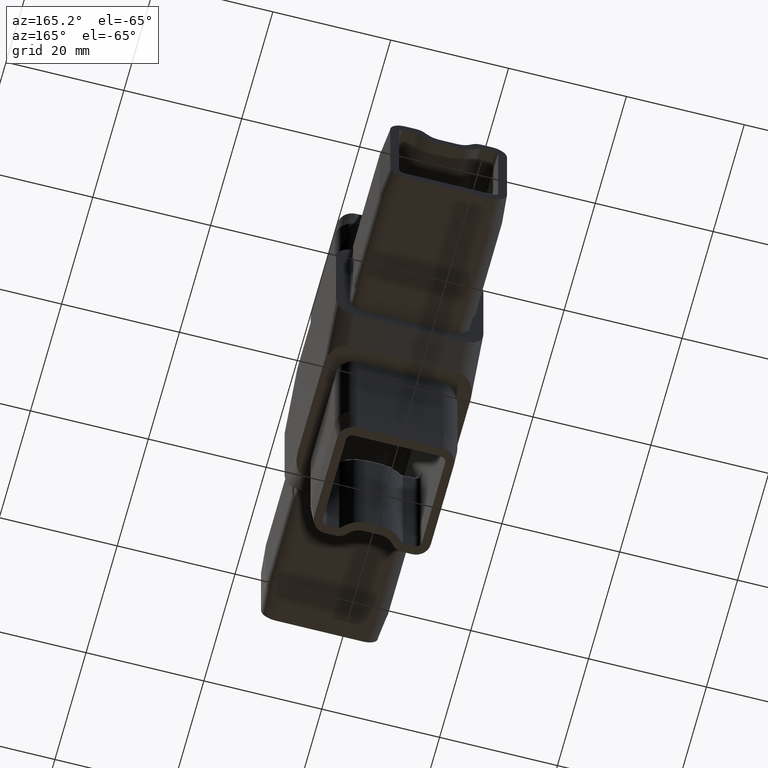
[diagram: clean part render]
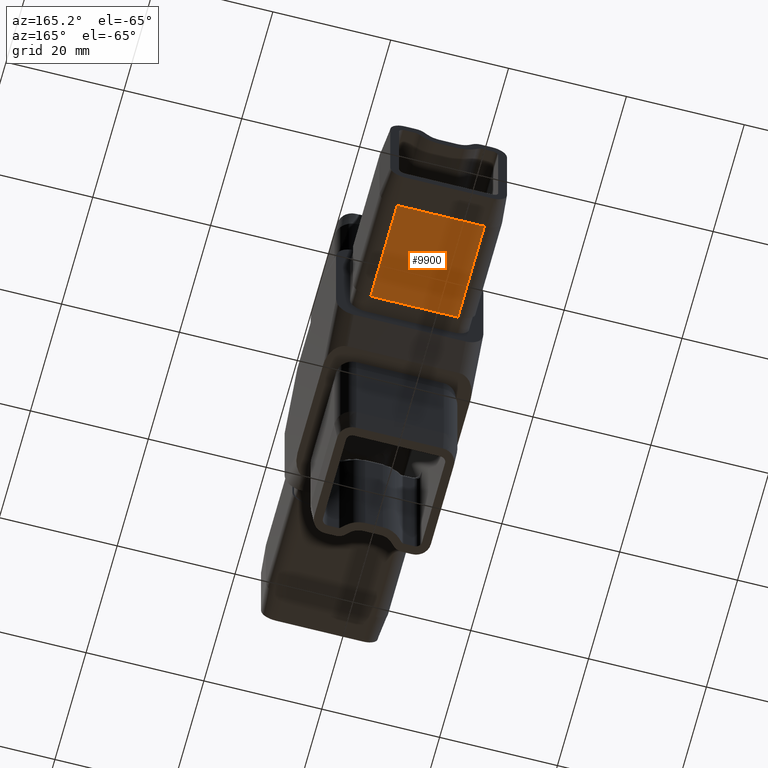
[diagram: same view with one face highlighted and labeled with its STEP entity id]
A machine part, auxiliary view. The second image highlights one B-rep face of the part: STEP entity #9900.
In plain terms, the highlighted planar face has unit normal (-0, 0, 1).
Its self-contained STEP definition (entity closure, byte-faithful):
#659 = ORIENTED_EDGE ( 'NONE', *, *, #20474, .F. ) ;
#750 = VERTEX_POINT ( 'NONE', #18038 ) ;
#1297 = CARTESIAN_POINT ( 'NONE',  ( 7.399999999999996800, 19.50000000000000400, -10.39999999999998300 ) ) ;
#1701 = CARTESIAN_POINT ( 'NONE',  ( -7.400000000000003900, 19.50000000000000400, -10.39999999999998300 ) ) ;
#1751 = CARTESIAN_POINT ( 'NONE',  ( -7.400000000000003900, 19.50000000000000400, -10.39999999999998300 ) ) ;
#1816 = VERTEX_POINT ( 'NONE', #1701 ) ;
#1876 = ORIENTED_EDGE ( 'NONE', *, *, #25386, .F. ) ;
#2276 = VECTOR ( 'NONE', #20875, 1000.000000000000000 ) ;
#4137 = VECTOR ( 'NONE', #19543, 1000.000000000000000 ) ;
#4501 = ORIENTED_EDGE ( 'NONE', *, *, #21049, .F. ) ;
#5061 = VECTOR ( 'NONE', #25715, 1000.000000000000000 ) ;
#5259 = CARTESIAN_POINT ( 'NONE',  ( -7.400000000000006600, 36.50000000000001400, -10.39999999999997500 ) ) ;
#7750 = DIRECTION ( 'NONE',  ( -1.000000000000000000, -0.0000000000000000000, -0.0000000000000000000 ) ) ;
#7790 = CARTESIAN_POINT ( 'NONE',  ( 7.399999999999996800, 36.50000000000001400, -10.39999999999998100 ) ) ;
#9900 = ADVANCED_FACE ( 'NONE', ( #25371 ), #13213, .F. ) ;
#10340 = CARTESIAN_POINT ( 'NONE',  ( -7.400000000000003000, 41.50000000000000700, -10.39999999999998300 ) ) ;
#10351 = CARTESIAN_POINT ( 'NONE',  ( -8.673617379884035500E-016, 19.50000000000000400, -10.39999999999998100 ) ) ;
#13213 = PLANE ( 'NONE',  #14982 ) ;
#13590 = LINE ( 'NONE', #5259, #4137 ) ;
#13946 = VERTEX_POINT ( 'NONE', #7790 ) ;
#14982 = AXIS2_PLACEMENT_3D ( 'NONE', #25059, #27451, #30060 ) ;
#15814 = LINE ( 'NONE', #26878, #26047 ) ;
#15988 = EDGE_CURVE ( 'NONE', #13946, #24687, #22307, .T. ) ;
#16152 = EDGE_LOOP ( 'NONE', ( #659, #18718, #4501, #23503, #19439, #1876 ) ) ;
#18038 = CARTESIAN_POINT ( 'NONE',  ( -7.400000000000006600, 36.50000000000001400, -10.39999999999997500 ) ) ;
#18635 = VERTEX_POINT ( 'NONE', #10351 ) ;
#18718 = ORIENTED_EDGE ( 'NONE', *, *, #20519, .T. ) ;
#19439 = ORIENTED_EDGE ( 'NONE', *, *, #25887, .T. ) ;
#19543 = DIRECTION ( 'NONE',  ( 1.000000000000000000, 0.0000000000000000000, 2.344220913482171200E-016 ) ) ;
#20474 = EDGE_CURVE ( 'NONE', #750, #1816, #28323, .T. ) ;
#20519 = EDGE_CURVE ( 'NONE', #750, #25115, #13590, .T. ) ;
#20618 = DIRECTION ( 'NONE',  ( -1.000000000000000000, -0.0000000000000000000, -0.0000000000000000000 ) ) ;
#20875 = DIRECTION ( 'NONE',  ( -0.0000000000000000000, -1.000000000000000000, -0.0000000000000000000 ) ) ;
#21049 = EDGE_CURVE ( 'NONE', #13946, #25115, #15814, .T. ) ;
#22307 = LINE ( 'NONE', #28309, #2276 ) ;
#22331 = VECTOR ( 'NONE', #22395, 1000.000000000000000 ) ;
#22395 = DIRECTION ( 'NONE',  ( -0.0000000000000000000, -1.000000000000000000, -0.0000000000000000000 ) ) ;
#23503 = ORIENTED_EDGE ( 'NONE', *, *, #15988, .T. ) ;
#24687 = VERTEX_POINT ( 'NONE', #29454 ) ;
#25059 = CARTESIAN_POINT ( 'NONE',  ( -7.400000000000003000, 41.50000000000000700, -10.39999999999998300 ) ) ;
#25115 = VERTEX_POINT ( 'NONE', #27084 ) ;
#25371 = FACE_OUTER_BOUND ( 'NONE', #16152, .T. ) ;
#25386 = EDGE_CURVE ( 'NONE', #1816, #18635, #29600, .T. ) ;
#25715 = DIRECTION ( 'NONE',  ( 1.000000000000000000, 0.0000000000000000000, 2.344220913482171200E-016 ) ) ;
#25887 = EDGE_CURVE ( 'NONE', #24687, #18635, #27175, .T. ) ;
#26047 = VECTOR ( 'NONE', #7750, 1000.000000000000000 ) ;
#26878 = CARTESIAN_POINT ( 'NONE',  ( 7.399999999999996800, 36.50000000000001400, -10.39999999999998100 ) ) ;
#27084 = CARTESIAN_POINT ( 'NONE',  ( -3.469446951953614200E-015, 36.50000000000001400, -10.39999999999997400 ) ) ;
#27175 = LINE ( 'NONE', #1297, #29776 ) ;
#27451 = DIRECTION ( 'NONE',  ( -1.172110456741085800E-016, 0.0000000000000000000, 1.000000000000000000 ) ) ;
#28309 = CARTESIAN_POINT ( 'NONE',  ( 7.399999999999996800, 41.50000000000000700, -10.39999999999998100 ) ) ;
#28323 = LINE ( 'NONE', #10340, #22331 ) ;
#29454 = CARTESIAN_POINT ( 'NONE',  ( 7.399999999999996800, 19.50000000000000400, -10.39999999999998300 ) ) ;
#29600 = LINE ( 'NONE', #1751, #5061 ) ;
#29776 = VECTOR ( 'NONE', #20618, 1000.000000000000000 ) ;
#30060 = DIRECTION ( 'NONE',  ( 1.000000000000000000, 0.0000000000000000000, 1.172110456741085800E-016 ) ) ;